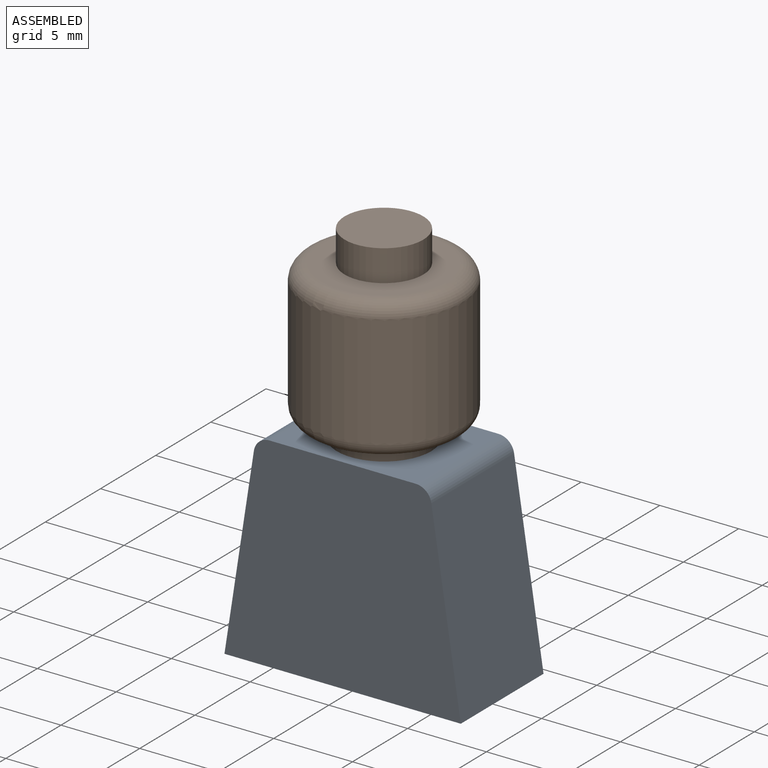
[diagram: assembled view]
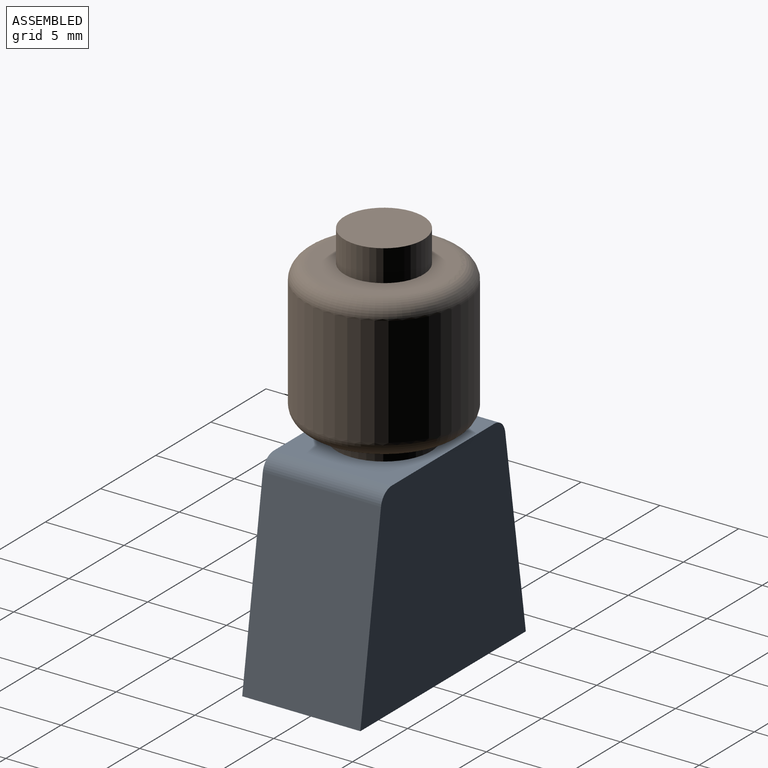
[diagram: assembled view, second angle]
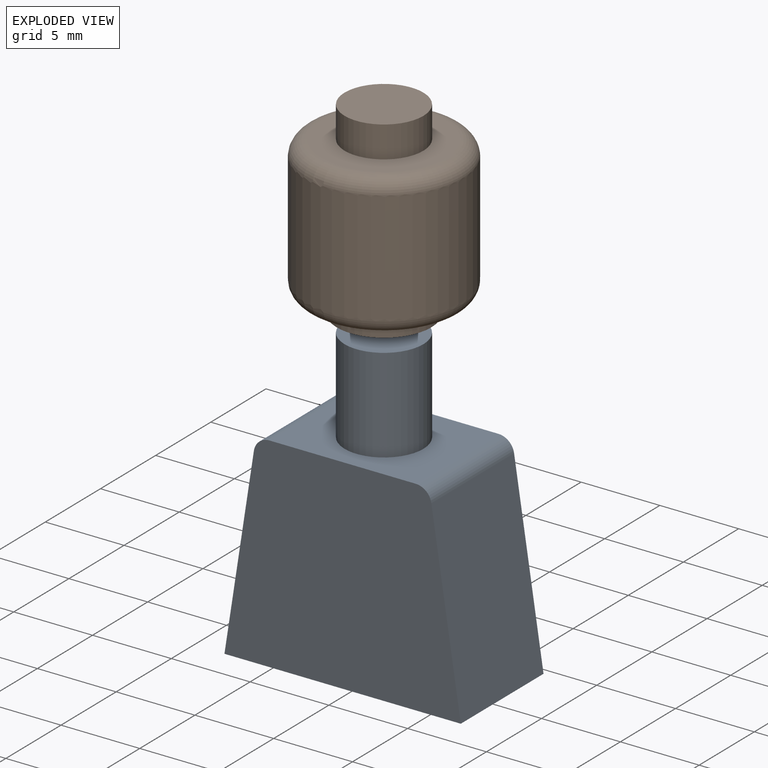
[diagram: exploded view]
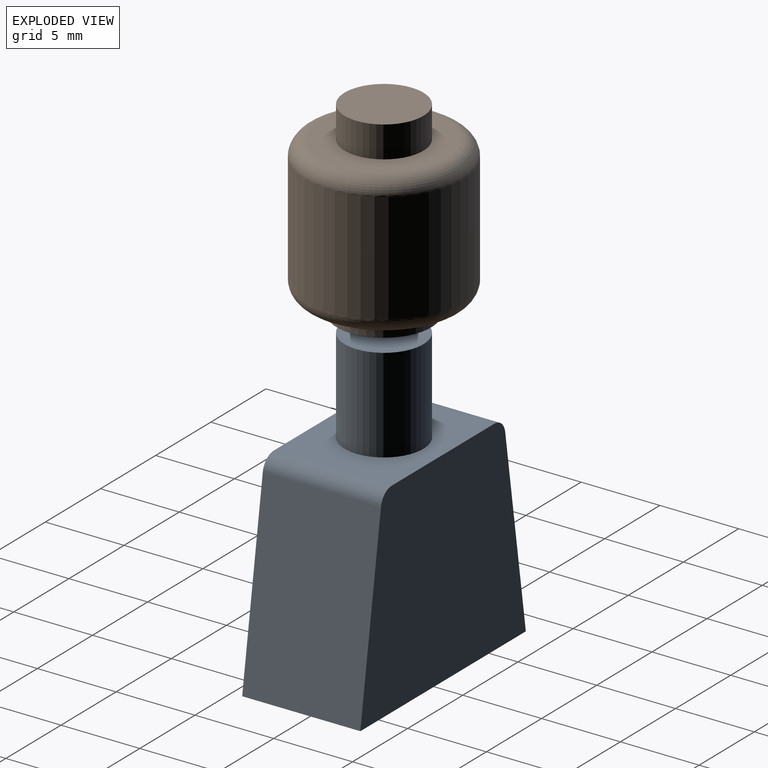
[diagram: exploded view, second angle]
ASSEMBLY  parts=2 mates=2
PART A: 15 faces, bbox 15x7.5x19 mm
  f0: plane 15x7.5mm, normal (0,0,-1), area 41.1mm2, adj f1,f5,f6,f7,f8,f10,f11,f12
  f1: plane 12.15x7.5mm, normal (0.99,0,0.15), area 92.2mm2, adj f0,f2,f6,f7
  f2: cylinder r=1mm len=7.5mm, axis (0,1,0), area 10.6mm2, adj f1,f3,f6,f7
  f3: plane 9.28x7.5mm, normal (0,0,1), area 50mm2, adj f2,f4,f6,f7,f13
  f4: cylinder r=1mm len=7.5mm, axis (0,1,0), area 10.6mm2, adj f3,f5,f6,f7
  f5: plane 12.15x7.5mm, normal (-0.99,0,0.15), area 92.2mm2, adj f0,f4,f6,f7
  f6: plane 15x13mm, normal (0,-1,0), area 168.7mm2, adj f0,f1,f2,f3,f4,f5
  f7: plane 15x13mm, normal (0,1,0), area 168.7mm2, adj f0,f1,f2,f3,f4,f5
  f8: plane 12x5.5mm, normal (-0.99,0,-0.15), area 66.8mm2, adj f0,f9,f11,f12
  f9: plane 9.28x5.5mm, normal (0,0,-1), area 51.1mm2, adj f8,f10,f11,f12
  f10: plane 12x5.5mm, normal (0.99,0,-0.15), area 66.8mm2, adj f0,f9,f11,f12
  f11: plane 12.98x12mm, normal (0,1,0), area 133.6mm2, adj f0,f8,f9,f10
  f12: plane 12.98x12mm, normal (0,-1,0), area 133.6mm2, adj f0,f8,f9,f10
  f13: cylinder r=2.5mm len=6mm, axis (0,0,-1), area 94.2mm2, adj f3,f14
  f14: plane 5x5mm, normal (0,0,1), area 19.6mm2, adj f13
PART B: 11 faces, bbox 10.8x10.8x12 mm
  f0: plane 6x6mm, normal (0,0,-1), area 8.6mm2, adj f1,f10
  f1: cylinder r=3mm len=6mm, axis (0,0,-1), area 18.8mm2, adj f0,f2
  f2: plane 8x8mm, normal (0,0,-1), area 22mm2, adj f1,f3
  f3: torus R=4mm, axis (0,0,-1), area 45.8mm2, adj f2,f4
  f4: cylinder r=5mm len=10mm, axis (0,0,-1), area 219.9mm2, adj f3,f5
  f5: torus R=4mm, axis (0,0,-1), area 45.8mm2, adj f4,f6
  f6: plane 8x8mm, normal (0,0,1), area 30.6mm2, adj f5,f7
  f7: cylinder r=2.5mm len=5mm, axis (0,0,-1), area 31.4mm2, adj f6,f8
  f8: plane 5x5mm, normal (0,0,1), area 19.6mm2, adj f7
  f9: plane 5x5mm, normal (0,0,-1), area 19.6mm2, adj f10
  f10: cylinder r=2.5mm len=6mm, axis (0,0,-1), area 94.2mm2, adj f0,f9
PLACE A t=(0,0,-6)mm
PLACE B t=(0,0,-6)mm
MATE planar A.f13 <-> B.f1  axis (0,0,1) through (0,0,-6)mm
MATE slider B.f1 <-> A.f13  axis (0,0,1) through (0,0,6)mm
